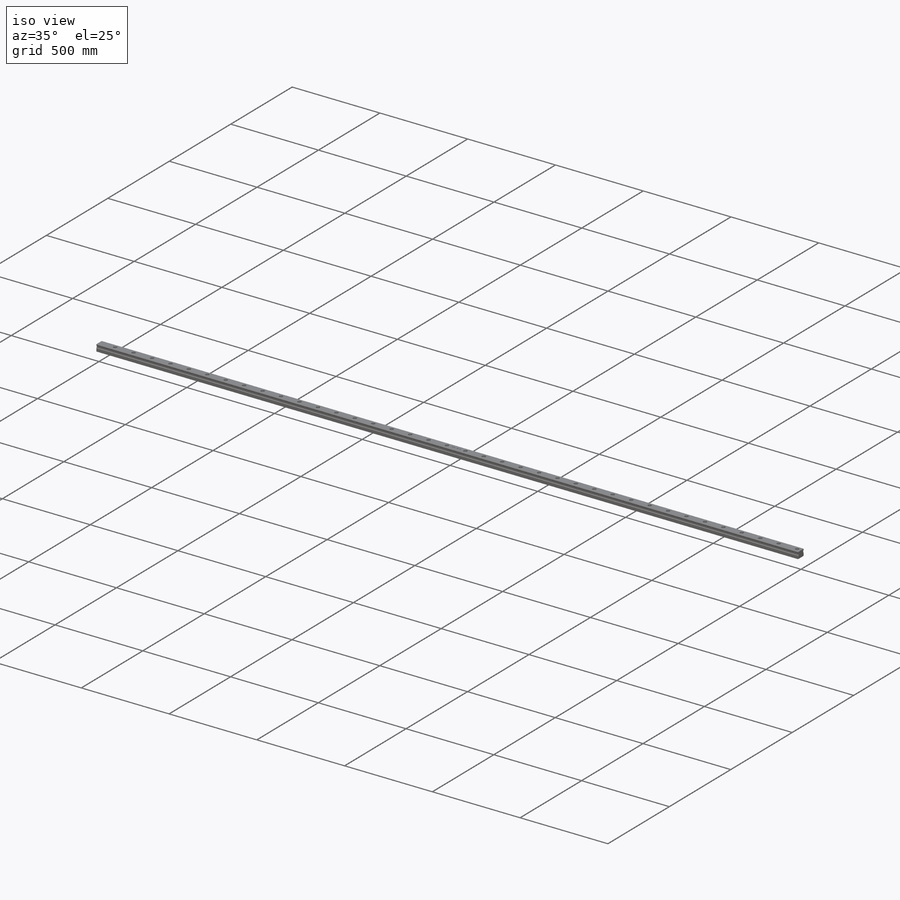
[diagram: iso view]
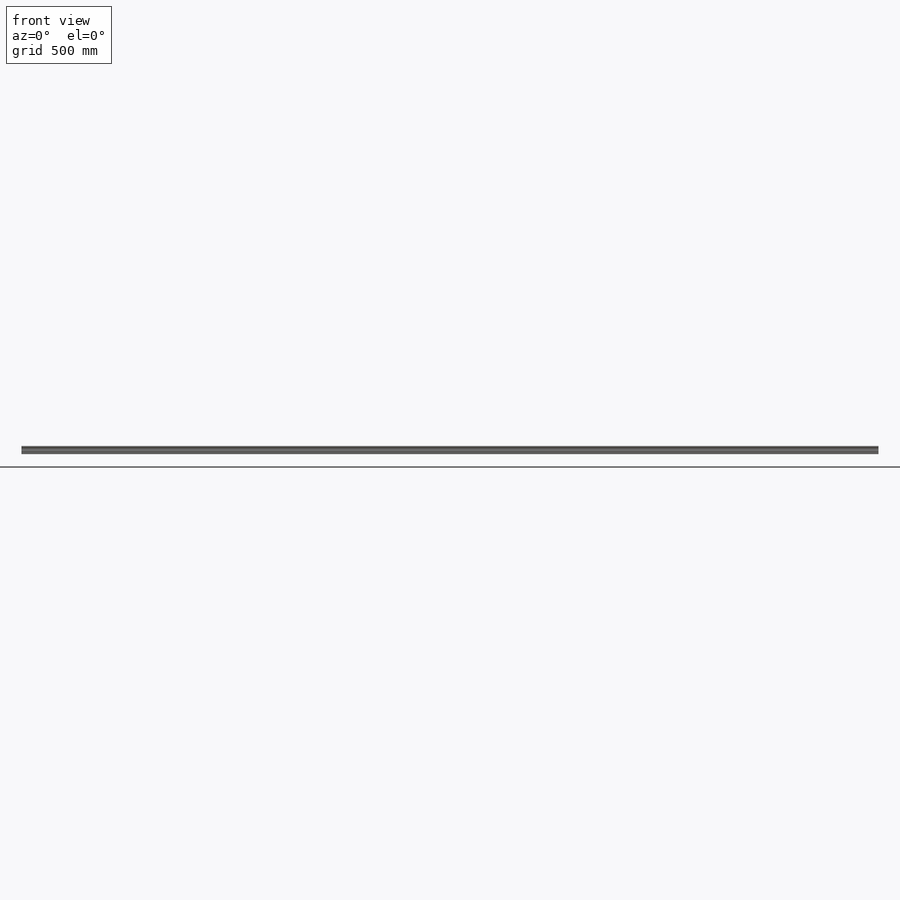
[diagram: front view]
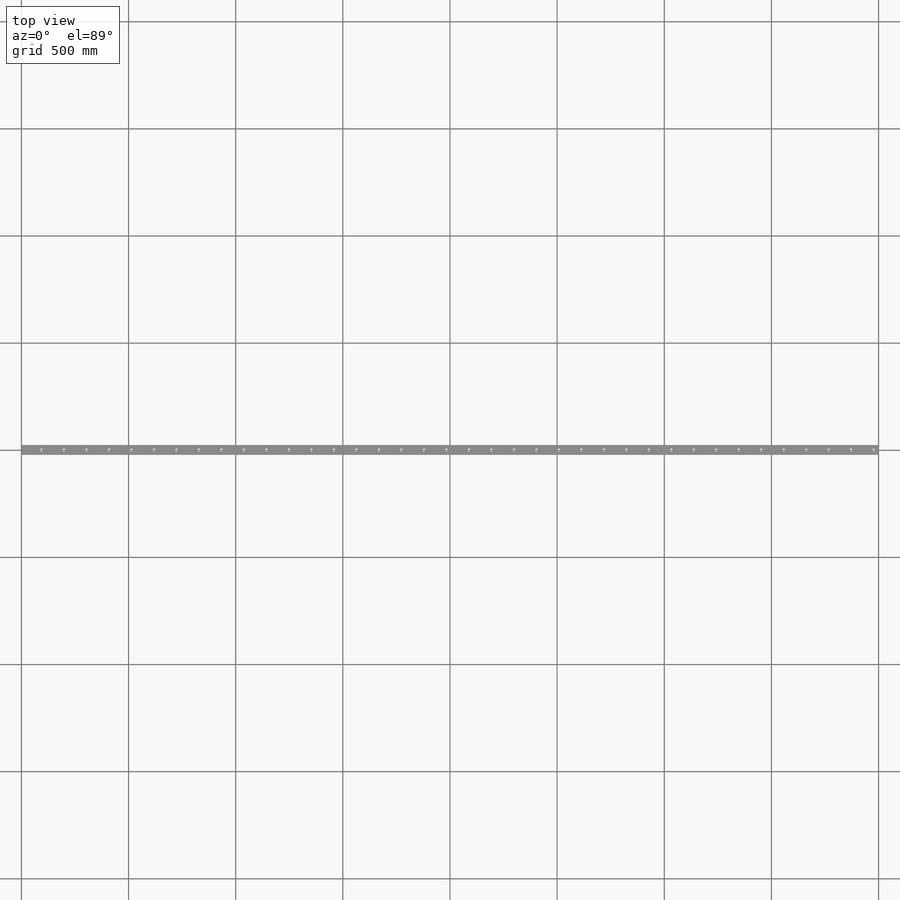
[diagram: top view]
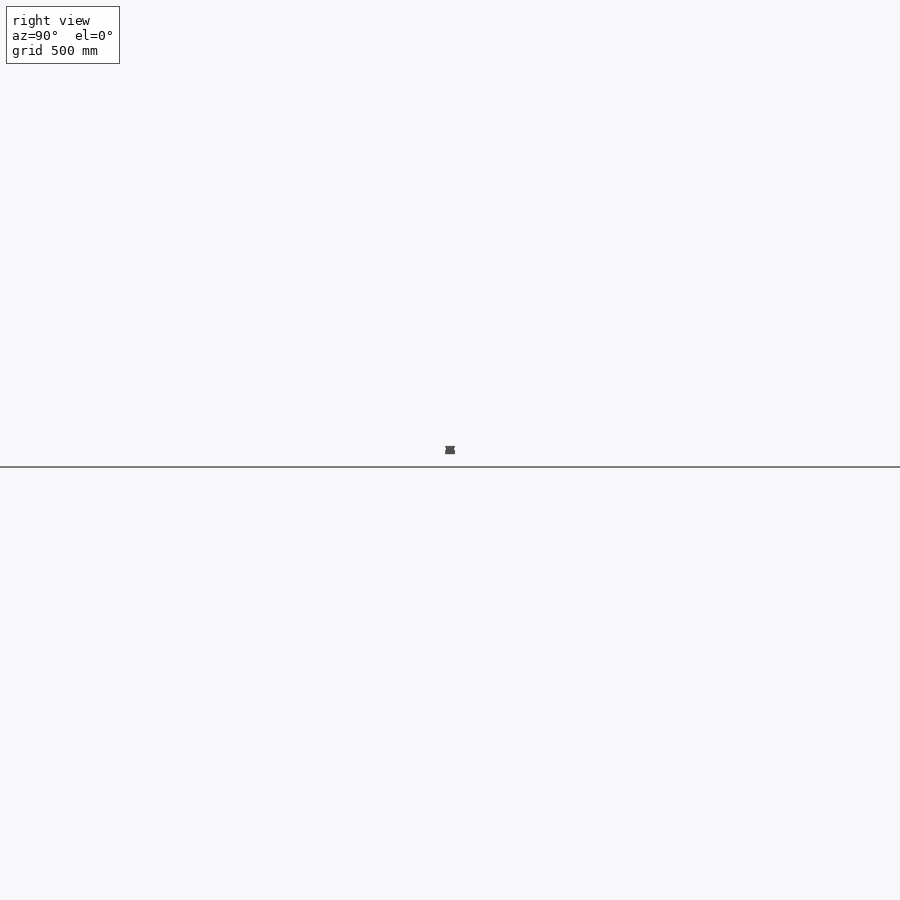
[diagram: right view]
SOLIDWORKS PART (.sldprt)
format: sldprt  version: not decoded by parser v0  size: 386,560 bytes
history: native  units: mm
features: sketch x4, cut_extrude x3, material x1, extrude x1, pattern_linear x1, chamfer x1 (+11 scaffold rows collapsed)
feature tree (22):
  scaffold x11  (default folders/planes/origin — collapsed)
  material  "Material <not specified>"
  sketch  "Sketch1"  dims[c1.D1=45.0mm c1.D3=2.0mm c1.D4=2.0mm c1.D5=4.0mm c1.D6=3.0mm c1.D7=9.0mm c1.D8=3.0mm c1.D9=17.0mm c1.D10=22.5mm c1.D11=19.5mm c2.D8=~3.99987mm c3.D8=~0.462482deg c4.D8=~3.99987mm c5.D8=~0.462482deg c6.D8=6.0mm c6.D3=3.0mm c6.D5=2.0mm c6.D6=4.0mm c6.D7=3.0mm c7.D8=9.0mm c7.D9=17.0mm c7.D1=38.0mm c7.D2=38.0mm]
  extrude  "Boss-Extrude1"  Depth=4000mm
  sketch  "Sketch2"  dims[D2=20.0mm D1=22.5mm]
  cut_extrude  "Cut-Extrude1"  Depth=17mm
  sketch  "Sketch3"  dims[D1=14.0mm]
  cut_extrude  "Cut-Extrude2"  [1 undecoded]
  pattern_linear  "LPattern1"  Count1=38 Count2=1 Spacing1=105mm Spacing2=10mm
  chamfer  "Chamfer1"  Distance=1mm Angle=45deg
  sketch  "Sketch5"
  cut_extrude  "Cut-Extrude3"  Depth=2mm
decode coverage: 8 of 10 modeling features carry decoded parameters
note: ~ marks probable driven/reference dimensions
note: 1 parameter value undecoded
note: suppression state not decoded; provenance and decode notes live in map.json
